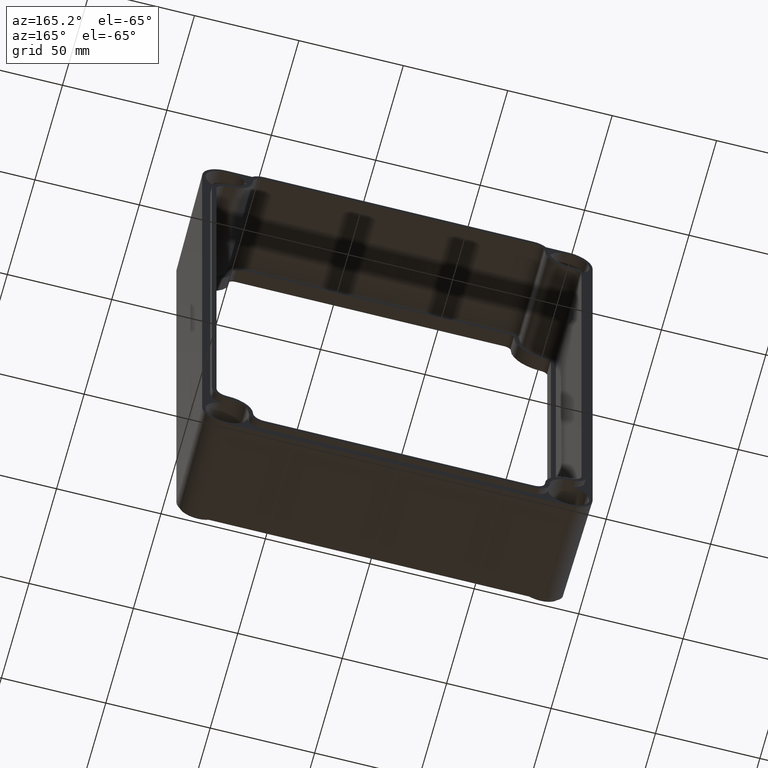
[diagram: clean part render]
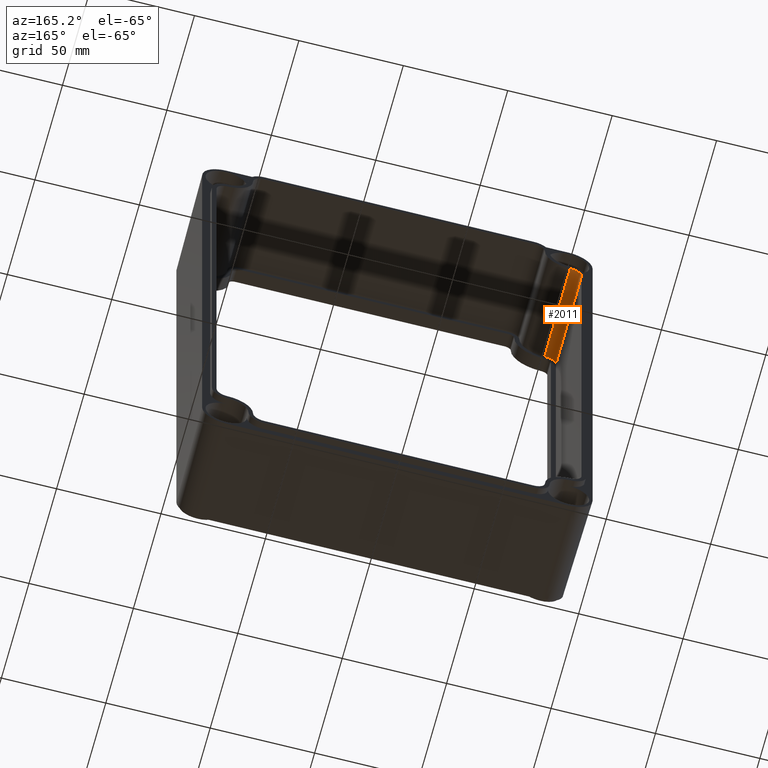
[diagram: same view with one face highlighted and labeled with its STEP entity id]
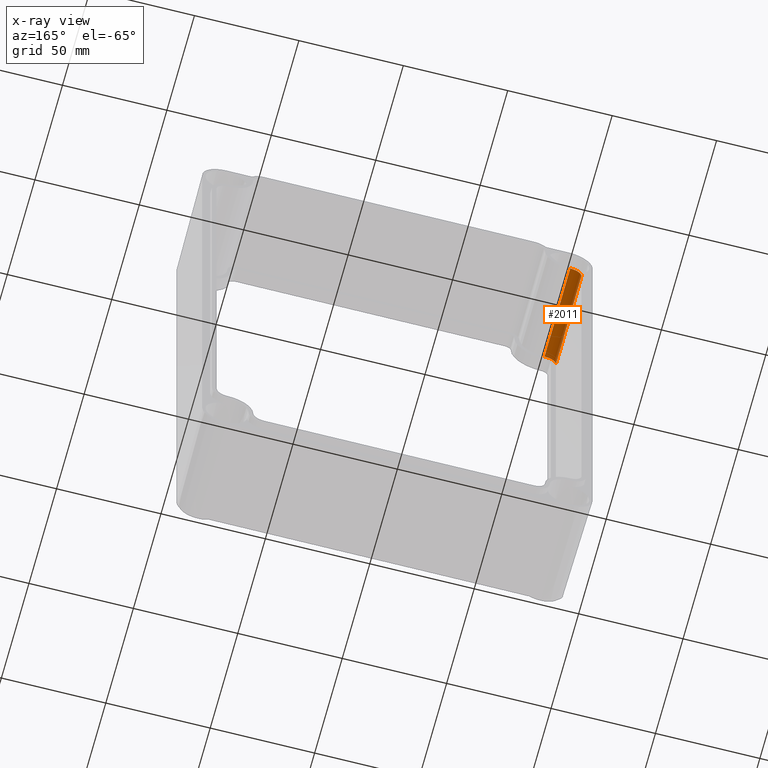
[diagram: x-ray of the same camera — body ghosted, the highlighted face saturated]
A machine part, auxiliary view. The second image highlights one B-rep face of the part: STEP entity #2011.
The next image is the same camera in x-ray: the body ghosted, the highlighted face saturated — about 0% of this face is hidden behind the body in this view.
In plain terms, the highlighted cylindrical surface (edge-blend (fillet) strip) has radius 5.4 mm, axis along (-0, -1, -0).
Its self-contained STEP definition (entity closure, byte-faithful):
#16 = AXIS2_PLACEMENT_3D ( 'NONE', #1777, #2923, #1547 ) ;
#22 = VERTEX_POINT ( 'NONE', #254 ) ;
#66 = EDGE_CURVE ( 'NONE', #770, #22, #1002, .T. ) ;
#149 = ORIENTED_EDGE ( 'NONE', *, *, #328, .T. ) ;
#237 = EDGE_CURVE ( 'NONE', #1424, #770, #1524, .T. ) ;
#254 = CARTESIAN_POINT ( 'NONE',  ( -82.00000000000001400, -43.49999999999998600, 114.9000000000000100 ) ) ;
#328 = EDGE_CURVE ( 'NONE', #22, #2041, #1671, .T. ) ;
#329 = CARTESIAN_POINT ( 'NONE',  ( -82.00000000000001400, 3.000000000000000000, 109.5000000000000100 ) ) ;
#587 = CARTESIAN_POINT ( 'NONE',  ( -82.00000000000001400, 3.000000000000000000, 114.9000000000000100 ) ) ;
#770 = VERTEX_POINT ( 'NONE', #587 ) ;
#855 = LINE ( 'NONE', #1375, #2289 ) ;
#856 = AXIS2_PLACEMENT_3D ( 'NONE', #329, #2369, #2154 ) ;
#922 = EDGE_CURVE ( 'NONE', #1424, #2041, #855, .T. ) ;
#1002 = LINE ( 'NONE', #1839, #1322 ) ;
#1205 = ORIENTED_EDGE ( 'NONE', *, *, #66, .T. ) ;
#1322 = VECTOR ( 'NONE', #2313, 1000.000000000000000 ) ;
#1375 = CARTESIAN_POINT ( 'NONE',  ( -87.40000000000000600, 3.000000000000000000, 109.5000000000000400 ) ) ;
#1424 = VERTEX_POINT ( 'NONE', #2714 ) ;
#1524 = CIRCLE ( 'NONE', #856, 5.399999999999987900 ) ;
#1547 = DIRECTION ( 'NONE',  ( 0.0000000000000000000, 0.0000000000000000000, -1.000000000000000000 ) ) ;
#1556 = DIRECTION ( 'NONE',  ( -0.0000000000000000000, -1.000000000000000000, -0.0000000000000000000 ) ) ;
#1581 = DIRECTION ( 'NONE',  ( 0.0000000000000000000, 0.0000000000000000000, 1.000000000000000000 ) ) ;
#1615 = CARTESIAN_POINT ( 'NONE',  ( -87.40000000000000600, -43.49999999999998600, 109.5000000000000600 ) ) ;
#1671 = CIRCLE ( 'NONE', #1987, 5.399999999999987900 ) ;
#1759 = EDGE_LOOP ( 'NONE', ( #1205, #149, #2749, #2669 ) ) ;
#1775 = CARTESIAN_POINT ( 'NONE',  ( -82.00000000000001400, -43.49999999999998600, 109.5000000000000100 ) ) ;
#1777 = CARTESIAN_POINT ( 'NONE',  ( -82.00000000000001400, 3.000000000000000000, 109.5000000000000100 ) ) ;
#1839 = CARTESIAN_POINT ( 'NONE',  ( -82.00000000000001400, 3.000000000000000000, 114.9000000000000100 ) ) ;
#1925 = FACE_OUTER_BOUND ( 'NONE', #1759, .T. ) ;
#1987 = AXIS2_PLACEMENT_3D ( 'NONE', #1775, #2718, #1581 ) ;
#2011 = ADVANCED_FACE ( 'NONE', ( #1925 ), #2666, .F. ) ;
#2041 = VERTEX_POINT ( 'NONE', #1615 ) ;
#2154 = DIRECTION ( 'NONE',  ( 0.0000000000000000000, 0.0000000000000000000, 1.000000000000000000 ) ) ;
#2289 = VECTOR ( 'NONE', #1556, 1000.000000000000000 ) ;
#2313 = DIRECTION ( 'NONE',  ( -0.0000000000000000000, -1.000000000000000000, -0.0000000000000000000 ) ) ;
#2369 = DIRECTION ( 'NONE',  ( 0.0000000000000000000, 1.000000000000000000, 0.0000000000000000000 ) ) ;
#2666 = CYLINDRICAL_SURFACE ( 'NONE', #16, 5.399999999999987900 ) ;
#2669 = ORIENTED_EDGE ( 'NONE', *, *, #237, .T. ) ;
#2714 = CARTESIAN_POINT ( 'NONE',  ( -87.40000000000000600, 3.000000000000000000, 109.5000000000000400 ) ) ;
#2718 = DIRECTION ( 'NONE',  ( -0.0000000000000000000, -1.000000000000000000, -0.0000000000000000000 ) ) ;
#2749 = ORIENTED_EDGE ( 'NONE', *, *, #922, .F. ) ;
#2923 = DIRECTION ( 'NONE',  ( -0.0000000000000000000, -1.000000000000000000, -0.0000000000000000000 ) ) ;